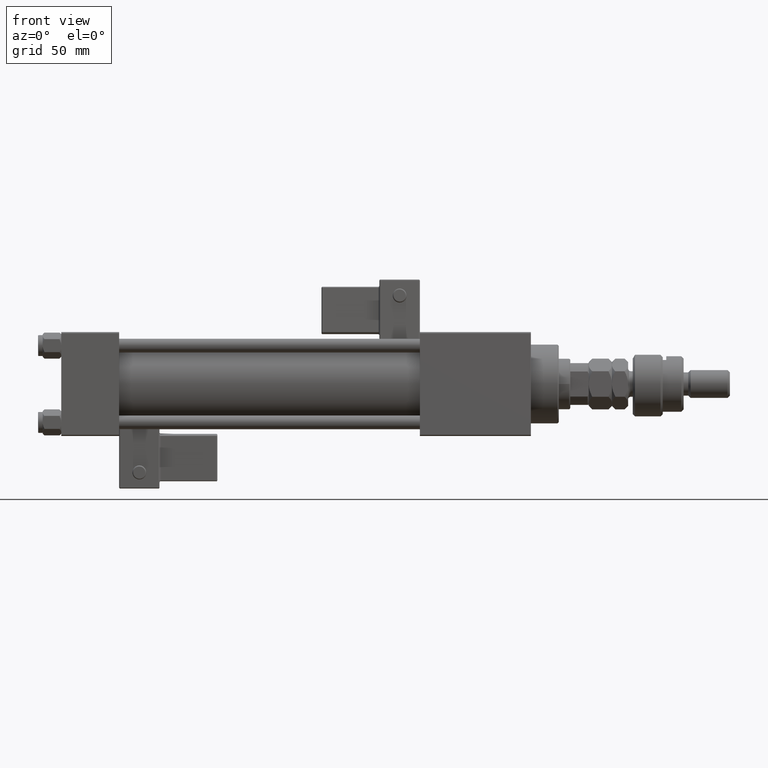
[diagram: clean part render]
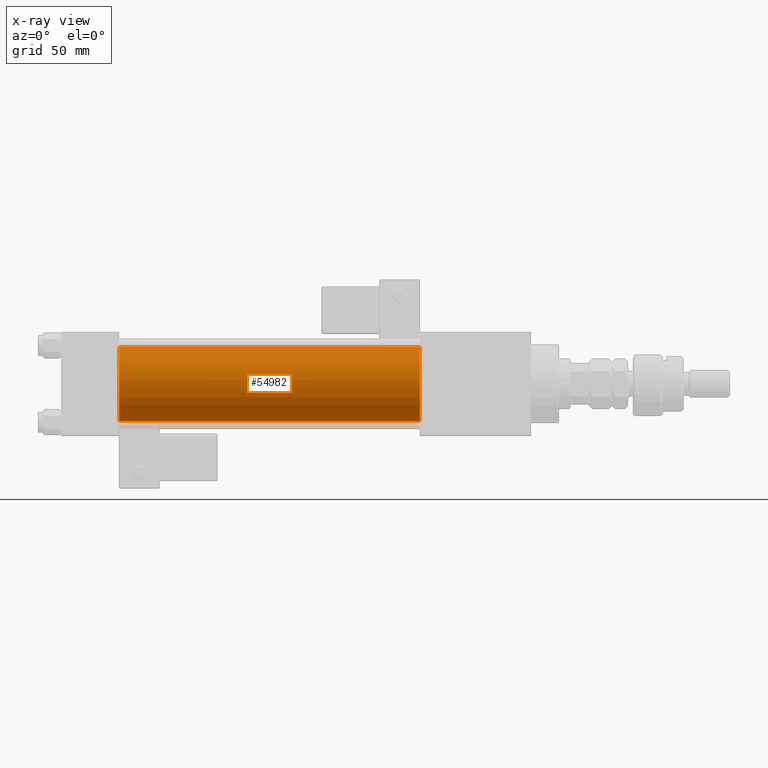
[diagram: x-ray — body ghosted, one internal face saturated and labeled with its STEP entity id]
A machine part, front view, then the same camera in x-ray: the body is ghosted and one INTERNAL B-rep face — a face not visible from any outside direction — is saturated and labeled: STEP entity #54982.
In plain terms, the highlighted cylindrical surface (partial cylindrical patch) has radius 16 mm, axis along (-1, -0, -0).
Its self-contained STEP definition (entity closure, byte-faithful):
#459 = AXIS2_PLACEMENT_3D ( 'NONE', #29601, #38274, #30158 ) ;
#3103 = VERTEX_POINT ( 'NONE', #42165 ) ;
#3228 = DIRECTION ( 'NONE',  ( 1.000000000000000000, 0.000000000000000000, 0.000000000000000000 ) ) ;
#4356 = EDGE_LOOP ( 'NONE', ( #49417, #32183, #37540, #24932 ) ) ;
#7144 = LINE ( 'NONE', #24242, #13524 ) ;
#7262 = CARTESIAN_POINT ( 'NONE',  ( 25.00000000000000000, -2.602085213965210642E-15, 16.00000000000000000 ) ) ;
#7289 = EDGE_CURVE ( 'NONE', #18673, #33985, #45473, .T. ) ;
#7993 = DIRECTION ( 'NONE',  ( 0.000000000000000000, 0.000000000000000000, -1.000000000000000000 ) ) ;
#9561 = CARTESIAN_POINT ( 'NONE',  ( 25.00000000000000000, -6.426503353294456087E-16, -16.00000000000000000 ) ) ;
#9675 = AXIS2_PLACEMENT_3D ( 'NONE', #46365, #3228, #7993 ) ;
#9794 = EDGE_CURVE ( 'NONE', #3103, #33985, #41091, .T. ) ;
#13524 = VECTOR ( 'NONE', #37386, 1000.000000000000000 ) ;
#18673 = VERTEX_POINT ( 'NONE', #7262 ) ;
#20204 = CARTESIAN_POINT ( 'NONE',  ( 155.0000000000000000, -2.602085213965210642E-15, 16.00000000000000000 ) ) ;
#20367 = DIRECTION ( 'NONE',  ( -1.000000000000000000, -0.000000000000000000, -0.000000000000000000 ) ) ;
#20508 = AXIS2_PLACEMENT_3D ( 'NONE', #42199, #54258, #37438 ) ;
#21204 = FACE_OUTER_BOUND ( 'NONE', #4356, .T. ) ;
#24242 = CARTESIAN_POINT ( 'NONE',  ( 155.0000000000000000, -2.602085213965210642E-15, 16.00000000000000000 ) ) ;
#24561 = CYLINDRICAL_SURFACE ( 'NONE', #20508, 16.00000000000000000 ) ;
#24580 = CIRCLE ( 'NONE', #459, 16.00000000000000000 ) ;
#24932 = ORIENTED_EDGE ( 'NONE', *, *, #27353, .F. ) ;
#27353 = EDGE_CURVE ( 'NONE', #36636, #18673, #7144, .T. ) ;
#29601 = CARTESIAN_POINT ( 'NONE',  ( 155.0000000000000000, -2.602085213965210642E-15, 0.000000000000000000 ) ) ;
#30158 = DIRECTION ( 'NONE',  ( 0.000000000000000000, 0.000000000000000000, -1.000000000000000000 ) ) ;
#32143 = CARTESIAN_POINT ( 'NONE',  ( 155.0000000000000000, -6.426503353294456087E-16, -16.00000000000000000 ) ) ;
#32183 = ORIENTED_EDGE ( 'NONE', *, *, #9794, .T. ) ;
#33985 = VERTEX_POINT ( 'NONE', #9561 ) ;
#36636 = VERTEX_POINT ( 'NONE', #20204 ) ;
#37386 = DIRECTION ( 'NONE',  ( -1.000000000000000000, -0.000000000000000000, -0.000000000000000000 ) ) ;
#37438 = DIRECTION ( 'NONE',  ( 0.000000000000000000, 0.000000000000000000, 1.000000000000000000 ) ) ;
#37540 = ORIENTED_EDGE ( 'NONE', *, *, #7289, .F. ) ;
#38274 = DIRECTION ( 'NONE',  ( 1.000000000000000000, 0.000000000000000000, 0.000000000000000000 ) ) ;
#38883 = VECTOR ( 'NONE', #20367, 1000.000000000000000 ) ;
#41091 = LINE ( 'NONE', #32143, #38883 ) ;
#42165 = CARTESIAN_POINT ( 'NONE',  ( 155.0000000000000000, -6.426503353294456087E-16, -16.00000000000000000 ) ) ;
#42199 = CARTESIAN_POINT ( 'NONE',  ( 155.0000000000000000, -2.602085213965210642E-15, 0.000000000000000000 ) ) ;
#45473 = CIRCLE ( 'NONE', #9675, 16.00000000000000000 ) ;
#46365 = CARTESIAN_POINT ( 'NONE',  ( 25.00000000000000000, -2.602085213965210642E-15, 0.000000000000000000 ) ) ;
#47021 = EDGE_CURVE ( 'NONE', #36636, #3103, #24580, .T. ) ;
#49417 = ORIENTED_EDGE ( 'NONE', *, *, #47021, .T. ) ;
#54258 = DIRECTION ( 'NONE',  ( -1.000000000000000000, -0.000000000000000000, -0.000000000000000000 ) ) ;
#54982 = ADVANCED_FACE ( 'NONE', ( #21204 ), #24561, .F. ) ;